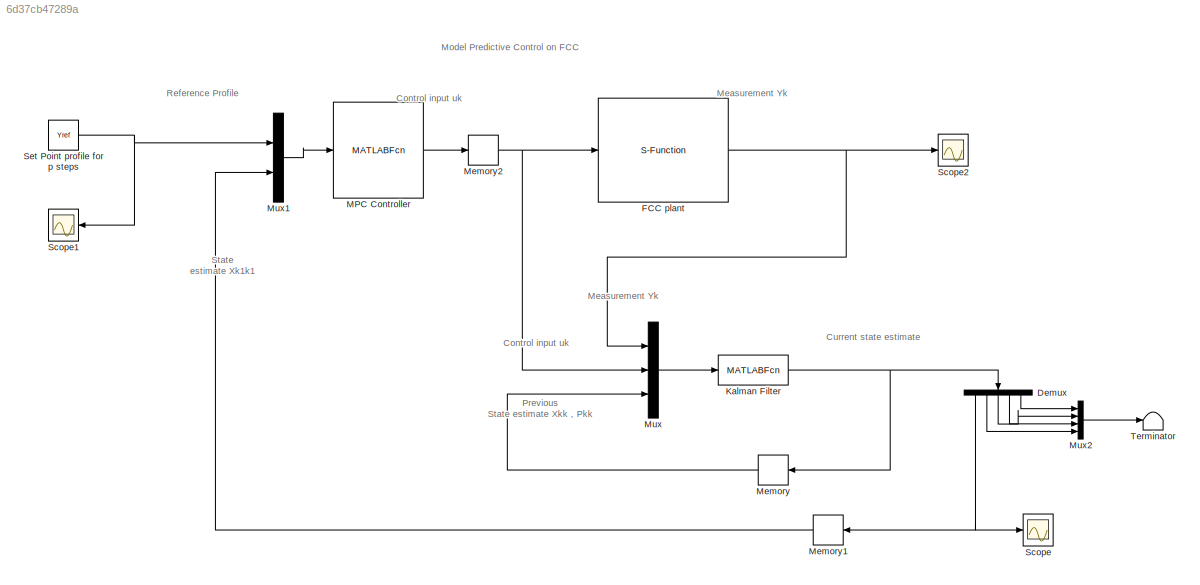
MODEL slx_6d37cb47289a
KIND model
CONFIG AbsTol = auto
CONFIG FixedStep = Ts
CONFIG MaxStep = auto
CONFIG MinStep = auto
CONFIG RelTol = 1e-3
CONFIG SampleTimeConstraint = Unconstrained
CONFIG Solver = ode45
CONFIG SolverMode = Auto
CONFIG SolverName = ode45
CONFIG StartTime = 0.0
CONFIG StopTime = 20000
BLOCK [Demux] Demux
  DisplayOption = bar
  Outputs = 5
  Ports = [1, 5]
BLOCK [S-Function] FCC plant
  EnableBusSupport = off
  FunctionName = yrates_sfcn
  Parameters = Y0
  Ports = [1, 1]
  SFunctionDeploymentMode = off
BLOCK [MATLABFcn] Kalman Filter
  MATLABFcn = KalmanFilter
  Ports = [1, 1]
BLOCK [MATLABFcn] MPC Controller
  MATLABFcn = Controller
  Output1D = off
  Ports = [1, 1]
BLOCK [Memory] Memory
  InheritSampleTime = on
  LinearizeAsDelay = on
  X0 = [X0; reshape(P00,[],1)]
BLOCK [Memory] Memory1
  InheritSampleTime = on
  LinearizeAsDelay = on
  X0 = X0
BLOCK [Memory] Memory2
  X0 = [0; 0]
BLOCK [Mux] Mux
  DisplayOption = bar
  Inputs = 3
  Ports = [3, 1]
BLOCK [Mux] Mux1
  DisplayOption = bar
  Inputs = 2
  Ports = [2, 1]
BLOCK [Mux] Mux2
  DisplayOption = bar
  Ports = [4, 1]
BLOCK [Scope] Scope
  Ports = [1]
  ScopeSpecificationString = Simulink.scopes.TimeScopeBlockCfg('CurrentConfiguration', extmgr.ConfigurationSet(extmgr.Configuration('Core','General UI',true),extmgr.Configuration('Core','Source UI',true),extmgr.Configuration('Sources','WiredSimulink',true),extmgr.Configuration('Visuals','Time Domain',true,'SerializedDisplays',{struct('MinYLimReal','-0.20708','MaxYLimReal','0.21435','YLabelReal','','MinYLimMag','0.00000','MaxY...<+1392ch>
BLOCK [Scope] Scope1
  Ports = [1]
  ScopeSpecificationString = C++SS(StrPVP('SaveName','ScopeData1'),StrPVP('LimitDataPoints','on'),StrPVP('DataFormat','Array'),StrPVP('Decimation','1'),StrPVP('BlockParamSampleInput','off'))
BLOCK [Scope] Scope2
  Ports = [1]
  ScopeSpecificationString = Simulink.scopes.TimeScopeBlockCfg('CurrentConfiguration', extmgr.ConfigurationSet(extmgr.Configuration('Core','General UI',true),extmgr.Configuration('Core','Source UI',true),extmgr.Configuration('Sources','WiredSimulink',true,'DataLoggingVariableName','ScopeData2'),extmgr.Configuration('Visuals','Time Domain',true,'SerializedDisplays',{struct('MinYLimReal','-121.44671','MaxYLimReal','1093.05151',...<+1416ch>
BLOCK [Constant] Set Point profile for p steps
  Value = Yref
  VectorParams1D = off
BLOCK [Terminator] Terminator
ANNOTATION (root): Model Predictive Control on FCC
ANNOTATION (root): Control input uk
ANNOTATION (root): Current state estimate
ANNOTATION (root): Measurement Yk
ANNOTATION (root): Previous State estimate Xkk , Pkk
ANNOTATION (root): Reference Profile
ANNOTATION (root): State estimate Xk1k1
NET Demux:1 -> Memory1:1, Scope:1
LINE Demux:2 -> Mux2:4
LINE Demux:3 -> Mux2:2
LINE Demux:4 -> Mux2:3
LINE Demux:5 -> Mux2:1
NET FCC plant:1 -> Mux:1, Scope2:1
NET Kalman Filter:1 -> Demux:1, Memory:1
LINE MPC Controller:1 -> Memory2:1
LINE Memory1:1 -> Mux1:2
NET Memory2:1 -> FCC plant:1, Mux:2
LINE Memory:1 -> Mux:3
LINE Mux1:1 -> MPC Controller:1
LINE Mux2:1 -> Terminator:1
LINE Mux:1 -> Kalman Filter:1
NET Set Point profile for p steps:1 -> Mux1:1, Scope1:1
note: NET lines group one-source signal fan-out (src -> all destinations, sorted); 1:1 wires keep LINE
